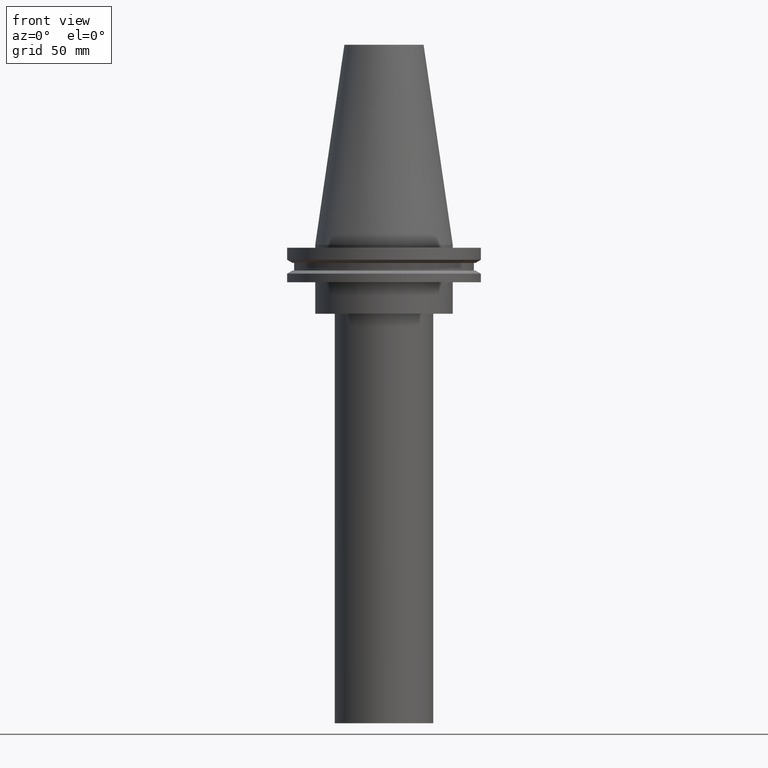
[diagram: clean part render]
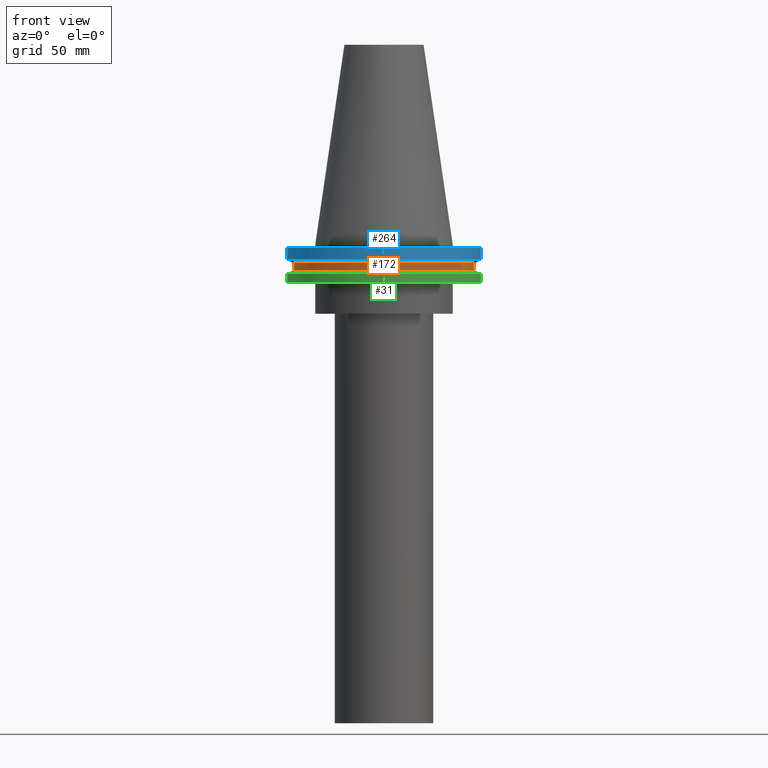
[diagram: same view with three faces highlighted in distinct colors, each labeled with its STEP entity id]
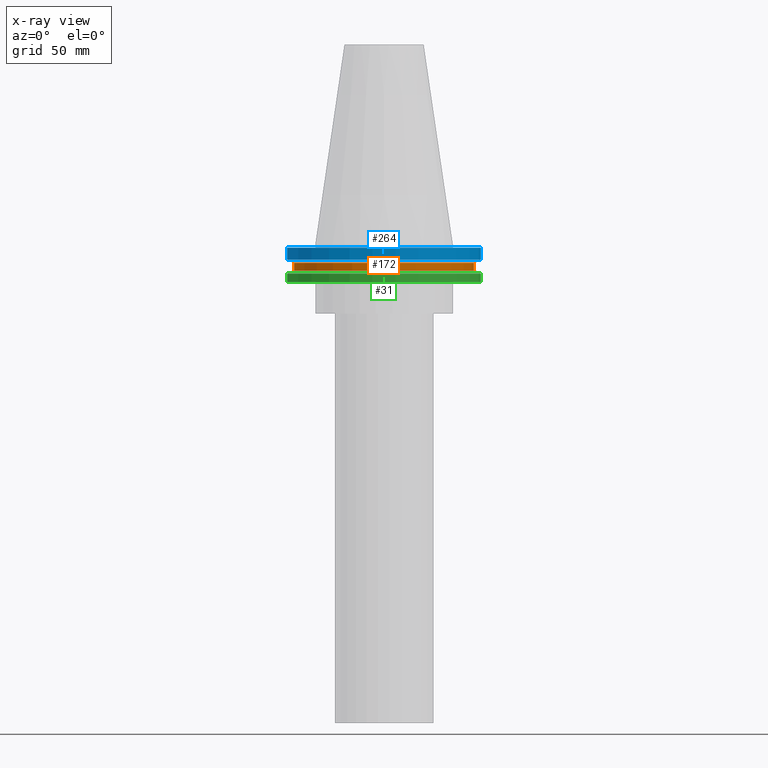
[diagram: x-ray of the same camera — body ghosted, the three highlighted faces saturated]
A machine part, front view with three faces highlighted in distinct colors.
The next image is the same camera in x-ray (body ghosted, the three faces saturated) — at least one of them is partly hidden behind the body in this view.
Their STEP definitions:

[orange] entity #172 — the highlighted cylindrical surface (bore or boss wall) has radius 45.645 mm, axis along (-0, -0, 1).
#47 = CARTESIAN_POINT ( 'NONE',  ( 0.000000000000000000, 0.000000000000000000, -9.204999999999991189 ) ) ;
#48 = AXIS2_PLACEMENT_3D ( 'NONE', #47, #206, #290 ) ;
#61 = ORIENTED_EDGE ( 'NONE', *, *, #230, .T. ) ;
#88 = CARTESIAN_POINT ( 'NONE',  ( 45.64500000000000313, 0.000000000000000000, -9.204999999999991189 ) ) ;
#119 = EDGE_CURVE ( 'NONE', #242, #242, #328, .T. ) ;
#152 = AXIS2_PLACEMENT_3D ( 'NONE', #204, #289, #234 ) ;
#167 = EDGE_LOOP ( 'NONE', ( #61 ) ) ;
#170 = CARTESIAN_POINT ( 'NONE',  ( 0.000000000000000000, 0.000000000000000000, 101.5999999999999943 ) ) ;
#172 = ADVANCED_FACE ( 'NONE', ( #321, #175 ), #173, .T. ) ;
#173 = CYLINDRICAL_SURFACE ( 'NONE', #334, 45.64500000000000313 ) ;
#175 = FACE_OUTER_BOUND ( 'NONE', #167, .T. ) ;
#181 = CARTESIAN_POINT ( 'NONE',  ( 45.64500000000000313, 0.000000000000000000, -13.05499999999999794 ) ) ;
#199 = ORIENTED_EDGE ( 'NONE', *, *, #119, .F. ) ;
#204 = CARTESIAN_POINT ( 'NONE',  ( 0.000000000000000000, 0.000000000000000000, -13.05499999999999794 ) ) ;
#206 = DIRECTION ( 'NONE',  ( -0.000000000000000000, -0.000000000000000000, 1.000000000000000000 ) ) ;
#212 = VERTEX_POINT ( 'NONE', #181 ) ;
#230 = EDGE_CURVE ( 'NONE', #212, #212, #322, .T. ) ;
#234 = DIRECTION ( 'NONE',  ( 1.000000000000000000, 0.000000000000000000, 0.000000000000000000 ) ) ;
#242 = VERTEX_POINT ( 'NONE', #88 ) ;
#289 = DIRECTION ( 'NONE',  ( -0.000000000000000000, -0.000000000000000000, 1.000000000000000000 ) ) ;
#290 = DIRECTION ( 'NONE',  ( 1.000000000000000000, 0.000000000000000000, 0.000000000000000000 ) ) ;
#321 = FACE_OUTER_BOUND ( 'NONE', #364, .T. ) ;
#322 = CIRCLE ( 'NONE', #152, 45.64500000000000313 ) ;
#328 = CIRCLE ( 'NONE', #48, 45.64500000000000313 ) ;
#334 = AXIS2_PLACEMENT_3D ( 'NONE', #170, #385, #354 ) ;
#354 = DIRECTION ( 'NONE',  ( 1.000000000000000000, 0.000000000000000000, 0.000000000000000000 ) ) ;
#364 = EDGE_LOOP ( 'NONE', ( #199 ) ) ;
#385 = DIRECTION ( 'NONE',  ( -0.000000000000000000, -0.000000000000000000, 1.000000000000000000 ) ) ;

[blue] entity #264 — the highlighted cylindrical surface (bore or boss wall) has radius 49.215 mm, axis along (-0, -0, 1).
#44 = EDGE_CURVE ( 'NONE', #244, #244, #318, .T. ) ;
#46 = CYLINDRICAL_SURFACE ( 'NONE', #374, 49.21499999999999631 ) ;
#56 = EDGE_LOOP ( 'NONE', ( #183 ) ) ;
#60 = CARTESIAN_POINT ( 'NONE',  ( 0.000000000000000000, 0.000000000000000000, 101.5999999999999943 ) ) ;
#70 = EDGE_LOOP ( 'NONE', ( #103 ) ) ;
#73 = CIRCLE ( 'NONE', #286, 49.21499999999999631 ) ;
#98 = CARTESIAN_POINT ( 'NONE',  ( 49.21499999999999631, 0.000000000000000000, -1.499999999999987566 ) ) ;
#103 = ORIENTED_EDGE ( 'NONE', *, *, #44, .T. ) ;
#138 = DIRECTION ( 'NONE',  ( 1.000000000000000000, 0.000000000000000000, 0.000000000000000000 ) ) ;
#151 = AXIS2_PLACEMENT_3D ( 'NONE', #340, #252, #138 ) ;
#156 = DIRECTION ( 'NONE',  ( -0.000000000000000000, -0.000000000000000000, 1.000000000000000000 ) ) ;
#183 = ORIENTED_EDGE ( 'NONE', *, *, #317, .F. ) ;
#202 = FACE_OUTER_BOUND ( 'NONE', #56, .T. ) ;
#244 = VERTEX_POINT ( 'NONE', #394 ) ;
#252 = DIRECTION ( 'NONE',  ( -0.000000000000000000, -0.000000000000000000, 1.000000000000000000 ) ) ;
#264 = ADVANCED_FACE ( 'NONE', ( #202, #320 ), #46, .T. ) ;
#275 = DIRECTION ( 'NONE',  ( 1.000000000000000000, 0.000000000000000000, 0.000000000000000000 ) ) ;
#276 = CARTESIAN_POINT ( 'NONE',  ( 0.000000000000000000, 0.000000000000000000, -1.499999999999987566 ) ) ;
#286 = AXIS2_PLACEMENT_3D ( 'NONE', #276, #370, #275 ) ;
#298 = DIRECTION ( 'NONE',  ( 1.000000000000000000, 0.000000000000000000, 0.000000000000000000 ) ) ;
#317 = EDGE_CURVE ( 'NONE', #342, #342, #73, .T. ) ;
#318 = CIRCLE ( 'NONE', #151, 49.21500000000000341 ) ;
#320 = FACE_OUTER_BOUND ( 'NONE', #70, .T. ) ;
#340 = CARTESIAN_POINT ( 'NONE',  ( 0.000000000000000000, 0.000000000000000000, -7.602389855251287187 ) ) ;
#342 = VERTEX_POINT ( 'NONE', #98 ) ;
#370 = DIRECTION ( 'NONE',  ( -0.000000000000000000, -0.000000000000000000, 1.000000000000000000 ) ) ;
#374 = AXIS2_PLACEMENT_3D ( 'NONE', #60, #156, #298 ) ;
#394 = CARTESIAN_POINT ( 'NONE',  ( 49.21500000000000341, 0.000000000000000000, -7.602389855251287187 ) ) ;

[green] entity #31 — the highlighted cylindrical surface (bore or boss wall) has radius 49.215 mm, axis along (-0, -0, 1).
#1 = CARTESIAN_POINT ( 'NONE',  ( 49.21499999999998920, 0.000000000000000000, -19.04999999999999716 ) ) ;
#3 = CIRCLE ( 'NONE', #36, 49.21499999999998920 ) ;
#4 = EDGE_LOOP ( 'NONE', ( #180 ) ) ;
#24 = DIRECTION ( 'NONE',  ( 1.000000000000000000, 0.000000000000000000, 0.000000000000000000 ) ) ;
#31 = ADVANCED_FACE ( 'NONE', ( #280, #133 ), #227, .T. ) ;
#36 = AXIS2_PLACEMENT_3D ( 'NONE', #52, #177, #91 ) ;
#40 = CARTESIAN_POINT ( 'NONE',  ( 0.000000000000000000, 0.000000000000000000, 101.5999999999999943 ) ) ;
#52 = CARTESIAN_POINT ( 'NONE',  ( 0.000000000000000000, 0.000000000000000000, -19.04999999999999716 ) ) ;
#91 = DIRECTION ( 'NONE',  ( 1.000000000000000000, 0.000000000000000000, 0.000000000000000000 ) ) ;
#127 = CARTESIAN_POINT ( 'NONE',  ( 0.000000000000000000, 0.000000000000000000, -14.65761014474876944 ) ) ;
#133 = FACE_OUTER_BOUND ( 'NONE', #390, .T. ) ;
#177 = DIRECTION ( 'NONE',  ( -0.000000000000000000, -0.000000000000000000, 1.000000000000000000 ) ) ;
#180 = ORIENTED_EDGE ( 'NONE', *, *, #314, .F. ) ;
#187 = AXIS2_PLACEMENT_3D ( 'NONE', #40, #221, #259 ) ;
#219 = DIRECTION ( 'NONE',  ( -0.000000000000000000, -0.000000000000000000, 1.000000000000000000 ) ) ;
#221 = DIRECTION ( 'NONE',  ( -0.000000000000000000, -0.000000000000000000, 1.000000000000000000 ) ) ;
#227 = CYLINDRICAL_SURFACE ( 'NONE', #187, 49.21499999999998920 ) ;
#247 = VERTEX_POINT ( 'NONE', #1 ) ;
#254 = CIRCLE ( 'NONE', #388, 49.21499999999998920 ) ;
#259 = DIRECTION ( 'NONE',  ( 1.000000000000000000, 0.000000000000000000, 0.000000000000000000 ) ) ;
#280 = FACE_OUTER_BOUND ( 'NONE', #4, .T. ) ;
#281 = ORIENTED_EDGE ( 'NONE', *, *, #306, .T. ) ;
#306 = EDGE_CURVE ( 'NONE', #247, #247, #3, .T. ) ;
#314 = EDGE_CURVE ( 'NONE', #366, #366, #254, .T. ) ;
#366 = VERTEX_POINT ( 'NONE', #377 ) ;
#377 = CARTESIAN_POINT ( 'NONE',  ( 49.21499999999998920, 0.000000000000000000, -14.65761014474876944 ) ) ;
#388 = AXIS2_PLACEMENT_3D ( 'NONE', #127, #219, #24 ) ;
#390 = EDGE_LOOP ( 'NONE', ( #281 ) ) ;